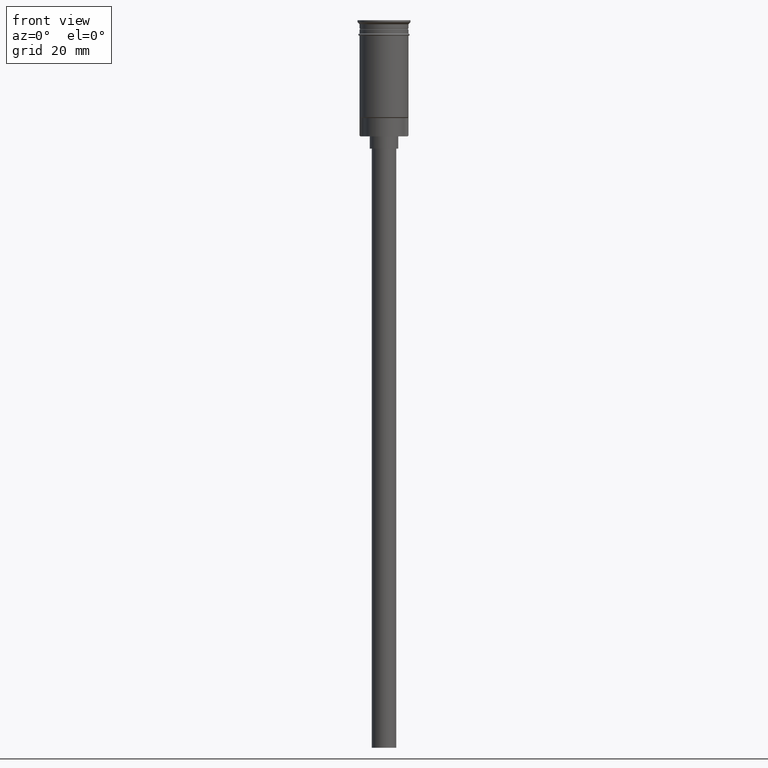
[diagram: clean part render]
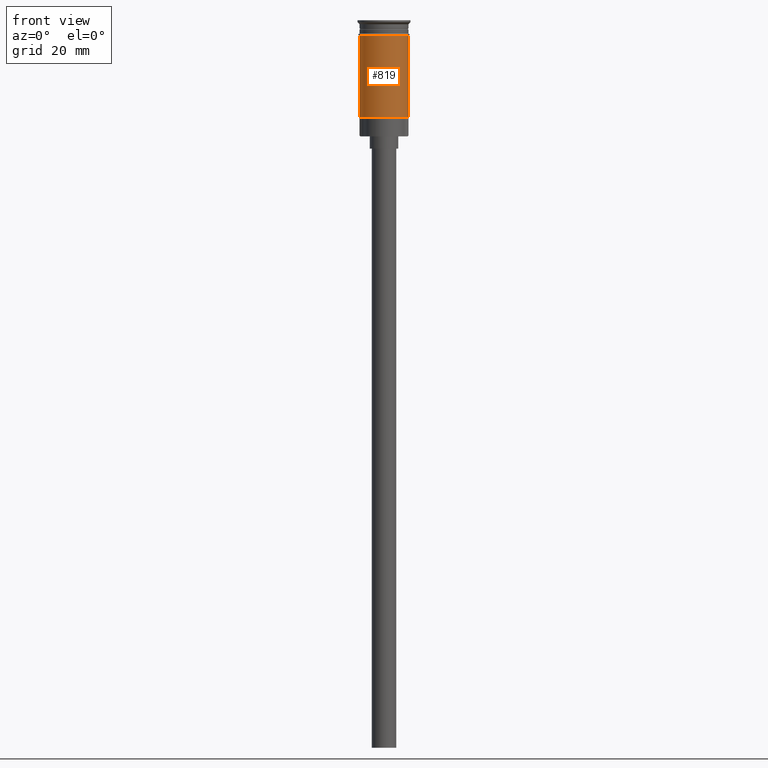
[diagram: same view with one face highlighted and labeled with its STEP entity id]
A machine part, front view. The second image highlights one B-rep face of the part: STEP entity #819.
In plain terms, the highlighted cylindrical surface (edge-blend (fillet) strip) has radius 6 mm, axis along (-0, -0, 1).
Its self-contained STEP definition (entity closure, byte-faithful):
#1 = VERTEX_POINT ( 'NONE', #163 ) ;
#18 = CYLINDRICAL_SURFACE ( 'NONE', #559, 5.999999999999997335 ) ;
#31 = EDGE_CURVE ( 'NONE', #1209, #1, #1493, .T. ) ;
#129 = EDGE_LOOP ( 'NONE', ( #714, #1389, #1402, #1555 ) ) ;
#163 = CARTESIAN_POINT ( 'NONE',  ( 6.000000000000000000, 0.000000000000000000, -3.799999999999998490 ) ) ;
#207 = CARTESIAN_POINT ( 'NONE',  ( 0.000000000000000000, 0.000000000000000000, -23.79999999999997939 ) ) ;
#241 = CARTESIAN_POINT ( 'NONE',  ( 5.999999999999997335, 7.347880794884115792E-16, -23.79999999999997939 ) ) ;
#256 = CARTESIAN_POINT ( 'NONE',  ( 0.000000000000000000, 0.000000000000000000, -3.799999999999998490 ) ) ;
#423 = AXIS2_PLACEMENT_3D ( 'NONE', #256, #1334, #849 ) ;
#437 = CARTESIAN_POINT ( 'NONE',  ( -6.000000000000000000, 7.347880794884119736E-16, -3.799999999999998490 ) ) ;
#523 = EDGE_CURVE ( 'NONE', #1326, #731, #1518, .T. ) ;
#559 = AXIS2_PLACEMENT_3D ( 'NONE', #999, #1494, #880 ) ;
#628 = FACE_OUTER_BOUND ( 'NONE', #129, .T. ) ;
#633 = CIRCLE ( 'NONE', #423, 6.000000000000000000 ) ;
#640 = DIRECTION ( 'NONE',  ( -0.000000000000000000, -0.000000000000000000, 1.000000000000000000 ) ) ;
#714 = ORIENTED_EDGE ( 'NONE', *, *, #523, .F. ) ;
#731 = VERTEX_POINT ( 'NONE', #437 ) ;
#754 = CARTESIAN_POINT ( 'NONE',  ( 5.999999999999997335, 0.000000000000000000, 0.000000000000000000 ) ) ;
#780 = EDGE_CURVE ( 'NONE', #731, #1, #633, .T. ) ;
#806 = CARTESIAN_POINT ( 'NONE',  ( -5.999999999999997335, 7.347880794884116778E-16, 0.000000000000000000 ) ) ;
#819 = ADVANCED_FACE ( 'NONE', ( #628 ), #18, .T. ) ;
#849 = DIRECTION ( 'NONE',  ( 1.000000000000000000, 0.000000000000000000, 0.000000000000000000 ) ) ;
#853 = DIRECTION ( 'NONE',  ( -1.000000000000000000, 0.000000000000000000, 0.000000000000000000 ) ) ;
#880 = DIRECTION ( 'NONE',  ( 1.000000000000000000, 0.000000000000000000, 0.000000000000000000 ) ) ;
#898 = CIRCLE ( 'NONE', #1227, 5.999999999999997335 ) ;
#999 = CARTESIAN_POINT ( 'NONE',  ( 0.000000000000000000, 0.000000000000000000, 0.000000000000000000 ) ) ;
#1209 = VERTEX_POINT ( 'NONE', #241 ) ;
#1227 = AXIS2_PLACEMENT_3D ( 'NONE', #207, #1515, #853 ) ;
#1295 = VECTOR ( 'NONE', #640, 1000.000000000000000 ) ;
#1326 = VERTEX_POINT ( 'NONE', #1589 ) ;
#1334 = DIRECTION ( 'NONE',  ( -0.000000000000000000, -0.000000000000000000, 1.000000000000000000 ) ) ;
#1365 = EDGE_CURVE ( 'NONE', #1326, #1209, #898, .T. ) ;
#1389 = ORIENTED_EDGE ( 'NONE', *, *, #1365, .T. ) ;
#1402 = ORIENTED_EDGE ( 'NONE', *, *, #31, .T. ) ;
#1480 = VECTOR ( 'NONE', #1548, 1000.000000000000000 ) ;
#1493 = LINE ( 'NONE', #754, #1295 ) ;
#1494 = DIRECTION ( 'NONE',  ( -0.000000000000000000, -0.000000000000000000, 1.000000000000000000 ) ) ;
#1515 = DIRECTION ( 'NONE',  ( -0.000000000000000000, -0.000000000000000000, 1.000000000000000000 ) ) ;
#1518 = LINE ( 'NONE', #806, #1480 ) ;
#1548 = DIRECTION ( 'NONE',  ( -0.000000000000000000, -0.000000000000000000, 1.000000000000000000 ) ) ;
#1555 = ORIENTED_EDGE ( 'NONE', *, *, #780, .F. ) ;
#1589 = CARTESIAN_POINT ( 'NONE',  ( -5.999999999999994671, 0.000000000000000000, -23.79999999999997939 ) ) ;